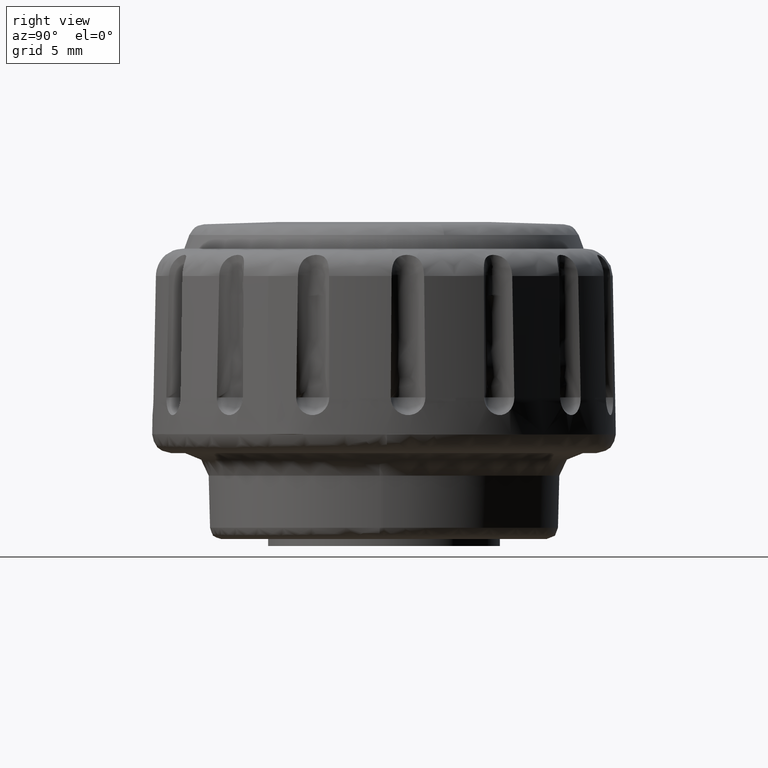
[diagram: clean part render]
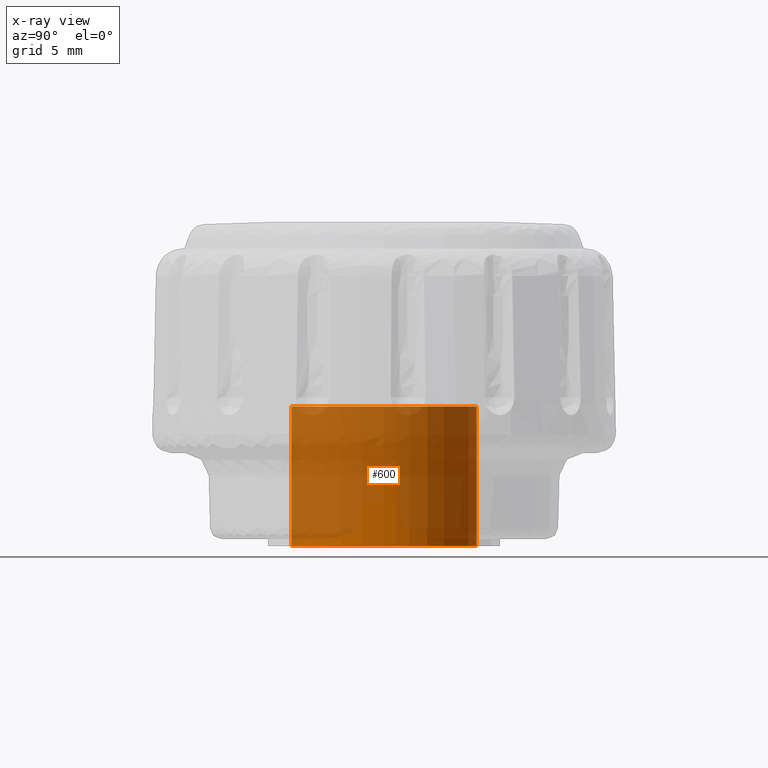
[diagram: x-ray — body ghosted, one internal face saturated and labeled with its STEP entity id]
A machine part, right view, then the same camera in x-ray: the body is ghosted and one INTERNAL B-rep face — a face not visible from any outside direction — is saturated and labeled: STEP entity #600.
In plain terms, the highlighted face is a freeform B-spline surface patch.
Its self-contained STEP definition (entity closure, byte-faithful):
#412=CARTESIAN_POINT('',(4.0,0.0,6.0));
#413=VERTEX_POINT('',#412);
#414=CARTESIAN_POINT('',(0.244194158156846,-3.992539193686402,6.0));
#415=VERTEX_POINT('',#414);
#416=CARTESIAN_POINT('',(4.0,0.0,6.0));
#417=CARTESIAN_POINT('',(4.000000000000001,-3.762824267606333,6.000000000000001));
#418=CARTESIAN_POINT('',(0.244194158156846,-3.992539193686402,5.999999999999999));
#426=(BOUNDED_CURVE()B_SPLINE_CURVE(2,(#416,#417,#418),.UNSPECIFIED.,.F.,.U.)B_SPLINE_CURVE_WITH_KNOTS((3,3),(0.0,0.239332962241216),.UNSPECIFIED.)CURVE()GEOMETRIC_REPRESENTATION_ITEM()RATIONAL_B_SPLINE_CURVE((1.0,0.719603993284048,0.976072041671588))REPRESENTATION_ITEM(''));
#427=EDGE_CURVE('',#413,#415,#426,.T.);
#446=CARTESIAN_POINT('',(-0.244194158156846,3.992539193686402,6.0));
#447=VERTEX_POINT('',#446);
#461=CARTESIAN_POINT('',(-0.244194158156845,3.992539193686402,6.0));
#462=CARTESIAN_POINT('',(-0.122211053203088,4.0,5.999999999999999));
#463=CARTESIAN_POINT('',(0.0,4.0,6.0));
#464=CARTESIAN_POINT('',(4.000000000000000,4.000000000000000,6.0));
#465=CARTESIAN_POINT('',(4.0,0.0,6.0));
#473=(BOUNDED_CURVE()B_SPLINE_CURVE(2,(#461,#462,#463,#464,#465),.UNSPECIFIED.,.F.,.U.)B_SPLINE_CURVE_WITH_KNOTS((3,2,3),(0.739332962241216,0.750000000000000,1.0),.UNSPECIFIED.)CURVE()GEOMETRIC_REPRESENTATION_ITEM()RATIONAL_B_SPLINE_CURVE((0.976072041671589,0.987502787902500,1.0,0.707106781186548,1.0))REPRESENTATION_ITEM(''));
#474=EDGE_CURVE('',#447,#413,#473,.T.);
#498=CARTESIAN_POINT('',(0.244194158156846,-3.992539193686402,1.387779E-017));
#499=VERTEX_POINT('',#498);
#500=CARTESIAN_POINT('',(0.244194158156846,-3.992539193686402,6.0));
#501=CARTESIAN_POINT('',(0.244194158156846,-3.992539193686402,1.942890E-016));
#502=QUASI_UNIFORM_CURVE('',1,(#500,#501),.UNSPECIFIED.,.F.,.U.);
#503=EDGE_CURVE('',#415,#499,#502,.T.);
#522=CARTESIAN_POINT('',(-0.244194158156846,3.992539193686402,1.387779E-017));
#523=VERTEX_POINT('',#522);
#537=CARTESIAN_POINT('',(-0.244194158156846,3.992539193686402,6.0));
#538=CARTESIAN_POINT('',(-0.244194158156845,3.992539193686402,1.942890E-016));
#539=QUASI_UNIFORM_CURVE('',1,(#537,#538),.UNSPECIFIED.,.F.,.U.);
#540=EDGE_CURVE('',#447,#523,#539,.T.);
#546=CARTESIAN_POINT('',(-0.244194158139428,3.992539193687467,6.150000000000001));
#547=CARTESIAN_POINT('',(3.748345035548039,4.236733351826894,6.150000000000002));
#548=CARTESIAN_POINT('',(3.992539193687467,0.244194158139428,6.150000000000001));
#549=CARTESIAN_POINT('',(4.236733351826894,-3.748345035548039,6.150000000000002));
#550=CARTESIAN_POINT('',(0.244194158139428,-3.992539193687467,6.150000000000001));
#551=CARTESIAN_POINT('',(-0.244194158139428,3.992539193687467,-0.153750000000001));
#552=CARTESIAN_POINT('',(3.748345035548039,4.236733351826894,-0.153750000000000));
#553=CARTESIAN_POINT('',(3.992539193687467,0.244194158139428,-0.153750000000001));
#554=CARTESIAN_POINT('',(4.236733351826894,-3.748345035548039,-0.153750000000000));
#555=CARTESIAN_POINT('',(0.244194158139428,-3.992539193687467,-0.153750000000001));
#563=(BOUNDED_SURFACE()B_SPLINE_SURFACE(2,1,((#546,#551),(#547,#552),(#548,#553),(#549,#554),(#550,#555)),.UNSPECIFIED.,.F.,.F.,.U.)B_SPLINE_SURFACE_WITH_KNOTS((3,2,3),(2,2),(0.0,6.627416997969518,13.254833995939039),(0.0,6.303750000000003),.UNSPECIFIED.)GEOMETRIC_REPRESENTATION_ITEM()RATIONAL_B_SPLINE_SURFACE(((1.0,1.0),(0.707106781186548,0.707106781186548),(1.0,1.0),(0.707106781186548,0.707106781186548),(1.0,1.0)))REPRESENTATION_ITEM('')SURFACE());
#564=ORIENTED_EDGE('',*,*,#427,.F.);
#565=ORIENTED_EDGE('',*,*,#474,.F.);
#566=ORIENTED_EDGE('',*,*,#540,.T.);
#567=CARTESIAN_POINT('',(4.0,0.0,0.0));
#568=VERTEX_POINT('',#567);
#569=CARTESIAN_POINT('',(-0.244194158156847,3.992539193686402,0.0));
#570=CARTESIAN_POINT('',(-0.122211053203090,4.000000000000001,0.0));
#571=CARTESIAN_POINT('',(0.0,4.0,0.0));
#572=CARTESIAN_POINT('',(4.000000000000000,4.000000000000000,0.0));
#573=CARTESIAN_POINT('',(4.0,0.0,0.0));
#581=(BOUNDED_CURVE()B_SPLINE_CURVE(2,(#569,#570,#571,#572,#573),.UNSPECIFIED.,.F.,.U.)B_SPLINE_CURVE_WITH_KNOTS((3,2,3),(0.739332962241215,0.750000000000000,1.0),.UNSPECIFIED.)CURVE()GEOMETRIC_REPRESENTATION_ITEM()RATIONAL_B_SPLINE_CURVE((0.976072041671588,0.987502787902500,1.0,0.707106781186548,1.0))REPRESENTATION_ITEM(''));
#582=EDGE_CURVE('',#523,#568,#581,.T.);
#583=ORIENTED_EDGE('',*,*,#582,.T.);
#584=CARTESIAN_POINT('',(4.0,0.0,0.0));
#585=CARTESIAN_POINT('',(4.000000000000000,-3.762824267606333,0.0));
#586=CARTESIAN_POINT('',(0.244194158156845,-3.992539193686402,0.0));
#594=(BOUNDED_CURVE()B_SPLINE_CURVE(2,(#584,#585,#586),.UNSPECIFIED.,.F.,.U.)B_SPLINE_CURVE_WITH_KNOTS((3,3),(0.0,0.239332962241216),.UNSPECIFIED.)CURVE()GEOMETRIC_REPRESENTATION_ITEM()RATIONAL_B_SPLINE_CURVE((1.0,0.719603993284048,0.976072041671589))REPRESENTATION_ITEM(''));
#595=EDGE_CURVE('',#568,#499,#594,.T.);
#596=ORIENTED_EDGE('',*,*,#595,.T.);
#597=ORIENTED_EDGE('',*,*,#503,.F.);
#598=EDGE_LOOP('',(#564,#565,#566,#583,#596,#597));
#599=FACE_OUTER_BOUND('',#598,.T.);
#600=ADVANCED_FACE('',(#599),#563,.F.);